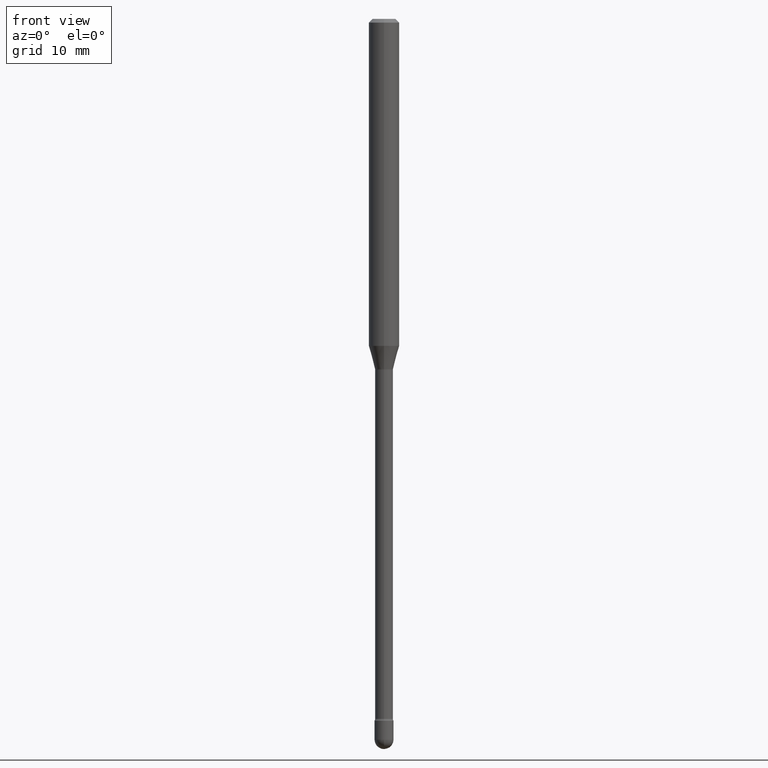
[diagram: clean part render]
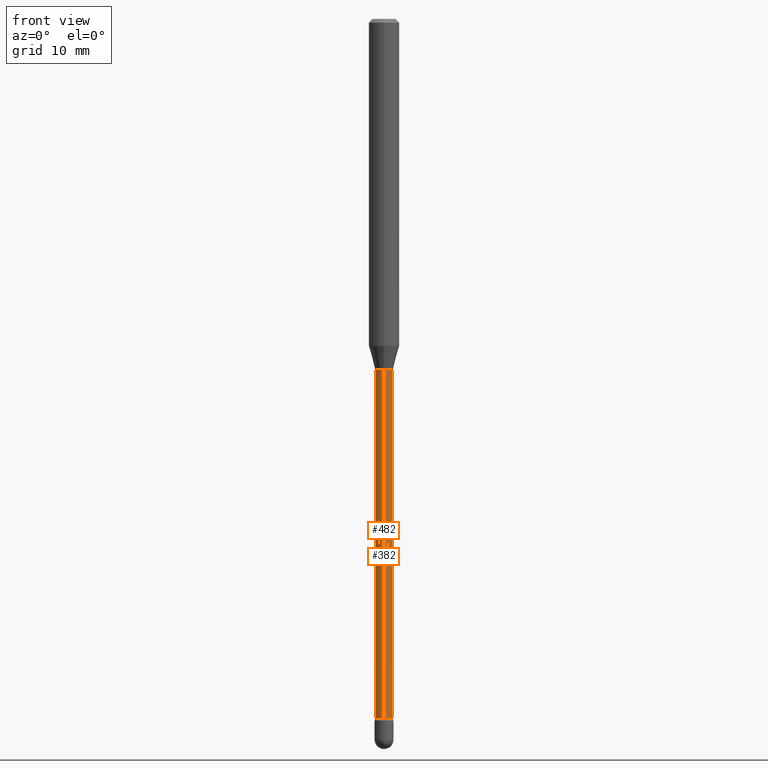
[diagram: same view with one multi-face feature highlighted, each face labeled with its STEP entity id]
A machine part, front view. The highlighted faces form ONE feature: a constant-radius fillet chain: 2 tangent blend faces with common blend radius 0.9309 mm. The faces share edges in the B-rep.
Their STEP definitions:
[1] entity #482 (Cylinder):
#7 = DIRECTION ( 'NONE',  ( -6.982962677686265922E-15, -1.000000000000000000, 0.000000000000000000 ) ) ;
#23 = EDGE_CURVE ( 'NONE', #416, #201, #334, .T. ) ;
#24 = CARTESIAN_POINT ( 'NONE',  ( 3.526344293607193167E-29, -5.034570877246955827E-15, -1.441974787463811136 ) ) ;
#26 = DIRECTION ( 'NONE',  ( -2.445496498457808529E-29, 3.491441681932533187E-15, 1.000000000000000000 ) ) ;
#32 = CARTESIAN_POINT ( 'NONE',  ( -2.559255821372020374E-16, -0.03665000000000005753, 6.060347365340735884E-16 ) ) ;
#70 = CARTESIAN_POINT ( 'NONE',  ( -2.559255821371321246E-16, -0.03665000000001015362, -2.874939137763242059 ) ) ;
#73 = VERTEX_POINT ( 'NONE', #521 ) ;
#80 = VERTEX_POINT ( 'NONE', #438 ) ;
#116 = FACE_OUTER_BOUND ( 'NONE', #459, .T. ) ;
#120 = DIRECTION ( 'NONE',  ( -6.982962677686265133E-15, -1.000000000000000000, 0.000000000000000000 ) ) ;
#138 = ORIENTED_EDGE ( 'NONE', *, *, #544, .F. ) ;
#145 = AXIS2_PLACEMENT_3D ( 'NONE', #24, #460, #120 ) ;
#148 = LINE ( 'NONE', #328, #553 ) ;
#155 = EDGE_CURVE ( 'NONE', #80, #416, #402, .T. ) ;
#158 = ORIENTED_EDGE ( 'NONE', *, *, #23, .T. ) ;
#201 = VERTEX_POINT ( 'NONE', #479 ) ;
#212 = DIRECTION ( 'NONE',  ( -2.445496498457808529E-29, 3.491441681932533187E-15, 1.000000000000000000 ) ) ;
#243 = ORIENTED_EDGE ( 'NONE', *, *, #155, .T. ) ;
#290 = CYLINDRICAL_SURFACE ( 'NONE', #315, 0.03665000000000005753 ) ;
#308 = CARTESIAN_POINT ( 'NONE',  ( 7.030653594679319492E-29, -1.003768233860576074E-14, -2.874939137763242059 ) ) ;
#314 = CIRCLE ( 'NONE', #145, 0.03665000000000000202 ) ;
#315 = AXIS2_PLACEMENT_3D ( 'NONE', #331, #26, #508 ) ;
#328 = CARTESIAN_POINT ( 'NONE',  ( 2.604139126560771269E-16, 0.03665000000000005753, 3.501120612484184887E-16 ) ) ;
#331 = CARTESIAN_POINT ( 'NONE',  ( -1.169113584055446105E-44, 1.669184350826100908E-30, 4.780733988912460139E-16 ) ) ;
#334 = LINE ( 'NONE', #32, #500 ) ;
#402 = CIRCLE ( 'NONE', #451, 0.03665000000000011304 ) ;
#403 = EDGE_CURVE ( 'NONE', #73, #201, #314, .T. ) ;
#416 = VERTEX_POINT ( 'NONE', #70 ) ;
#438 = CARTESIAN_POINT ( 'NONE',  ( 2.687627898013288258E-16, 0.03664999999999007246, -2.874939137763242059 ) ) ;
#451 = AXIS2_PLACEMENT_3D ( 'NONE', #308, #212, #7 ) ;
#459 = EDGE_LOOP ( 'NONE', ( #138, #243, #158, #464 ) ) ;
#460 = DIRECTION ( 'NONE',  ( -2.445496498457808529E-29, 3.491441681932533187E-15, 1.000000000000000000 ) ) ;
#461 = DIRECTION ( 'NONE',  ( -2.445496498457808529E-29, 3.491441681932533582E-15, 1.000000000000000000 ) ) ;
#464 = ORIENTED_EDGE ( 'NONE', *, *, #403, .F. ) ;
#479 = CARTESIAN_POINT ( 'NONE',  ( -2.559255821371663908E-16, -0.03665000000000503966, -1.441974787463811136 ) ) ;
#482 = ADVANCED_FACE ( 'NONE', ( #116 ), #290, .T. ) ;
#500 = VECTOR ( 'NONE', #461, 39.37007874015748143 ) ;
#506 = DIRECTION ( 'NONE',  ( -2.445496498457808529E-29, 3.491441681932533582E-15, 1.000000000000000000 ) ) ;
#508 = DIRECTION ( 'NONE',  ( -6.982962677686265922E-15, -1.000000000000000000, 3.491441681932533582E-15 ) ) ;
#521 = CARTESIAN_POINT ( 'NONE',  ( 2.604139126561474834E-16, 0.03664999999999497132, -1.441974787463811136 ) ) ;
#544 = EDGE_CURVE ( 'NONE', #80, #73, #148, .T. ) ;
#553 = VECTOR ( 'NONE', #506, 39.37007874015748143 ) ;
[2] entity #382 (Cylinder):
#23 = EDGE_CURVE ( 'NONE', #416, #201, #334, .T. ) ;
#32 = CARTESIAN_POINT ( 'NONE',  ( -2.559255821372020374E-16, -0.03665000000000005753, 6.060347365340735884E-16 ) ) ;
#47 = DIRECTION ( 'NONE',  ( -2.445496498457808529E-29, 3.491441681932533187E-15, 1.000000000000000000 ) ) ;
#70 = CARTESIAN_POINT ( 'NONE',  ( -2.559255821371321246E-16, -0.03665000000001015362, -2.874939137763242059 ) ) ;
#73 = VERTEX_POINT ( 'NONE', #521 ) ;
#75 = AXIS2_PLACEMENT_3D ( 'NONE', #505, #107, #279 ) ;
#80 = VERTEX_POINT ( 'NONE', #438 ) ;
#84 = EDGE_CURVE ( 'NONE', #416, #80, #412, .T. ) ;
#107 = DIRECTION ( 'NONE',  ( -2.445496498457808529E-29, 3.491441681932533187E-15, 1.000000000000000000 ) ) ;
#147 = FACE_OUTER_BOUND ( 'NONE', #278, .T. ) ;
#148 = LINE ( 'NONE', #328, #553 ) ;
#151 = ORIENTED_EDGE ( 'NONE', *, *, #23, .F. ) ;
#161 = AXIS2_PLACEMENT_3D ( 'NONE', #483, #47, #432 ) ;
#178 = ORIENTED_EDGE ( 'NONE', *, *, #471, .F. ) ;
#201 = VERTEX_POINT ( 'NONE', #479 ) ;
#278 = EDGE_LOOP ( 'NONE', ( #289, #509, #178, #151 ) ) ;
#279 = DIRECTION ( 'NONE',  ( -6.982962677686265922E-15, -1.000000000000000000, 3.491441681932533582E-15 ) ) ;
#289 = ORIENTED_EDGE ( 'NONE', *, *, #84, .T. ) ;
#327 = CYLINDRICAL_SURFACE ( 'NONE', #75, 0.03665000000000005753 ) ;
#328 = CARTESIAN_POINT ( 'NONE',  ( 2.604139126560771269E-16, 0.03665000000000005753, 3.501120612484184887E-16 ) ) ;
#334 = LINE ( 'NONE', #32, #500 ) ;
#363 = AXIS2_PLACEMENT_3D ( 'NONE', #556, #514, #426 ) ;
#382 = ADVANCED_FACE ( 'NONE', ( #147 ), #327, .T. ) ;
#412 = CIRCLE ( 'NONE', #161, 0.03665000000000011304 ) ;
#416 = VERTEX_POINT ( 'NONE', #70 ) ;
#426 = DIRECTION ( 'NONE',  ( -6.982962677686265133E-15, -1.000000000000000000, 0.000000000000000000 ) ) ;
#430 = CIRCLE ( 'NONE', #363, 0.03665000000000000202 ) ;
#432 = DIRECTION ( 'NONE',  ( -6.982962677686265922E-15, -1.000000000000000000, 0.000000000000000000 ) ) ;
#438 = CARTESIAN_POINT ( 'NONE',  ( 2.687627898013288258E-16, 0.03664999999999007246, -2.874939137763242059 ) ) ;
#461 = DIRECTION ( 'NONE',  ( -2.445496498457808529E-29, 3.491441681932533582E-15, 1.000000000000000000 ) ) ;
#471 = EDGE_CURVE ( 'NONE', #201, #73, #430, .T. ) ;
#479 = CARTESIAN_POINT ( 'NONE',  ( -2.559255821371663908E-16, -0.03665000000000503966, -1.441974787463811136 ) ) ;
#483 = CARTESIAN_POINT ( 'NONE',  ( 7.030653594679319492E-29, -1.003768233860576074E-14, -2.874939137763242059 ) ) ;
#500 = VECTOR ( 'NONE', #461, 39.37007874015748143 ) ;
#505 = CARTESIAN_POINT ( 'NONE',  ( -1.169113584055446105E-44, 1.669184350826100908E-30, 4.780733988912460139E-16 ) ) ;
#506 = DIRECTION ( 'NONE',  ( -2.445496498457808529E-29, 3.491441681932533582E-15, 1.000000000000000000 ) ) ;
#509 = ORIENTED_EDGE ( 'NONE', *, *, #544, .T. ) ;
#514 = DIRECTION ( 'NONE',  ( -2.445496498457808529E-29, 3.491441681932533187E-15, 1.000000000000000000 ) ) ;
#521 = CARTESIAN_POINT ( 'NONE',  ( 2.604139126561474834E-16, 0.03664999999999497132, -1.441974787463811136 ) ) ;
#544 = EDGE_CURVE ( 'NONE', #80, #73, #148, .T. ) ;
#553 = VECTOR ( 'NONE', #506, 39.37007874015748143 ) ;
#556 = CARTESIAN_POINT ( 'NONE',  ( 3.526344293607193167E-29, -5.034570877246955827E-15, -1.441974787463811136 ) ) ;